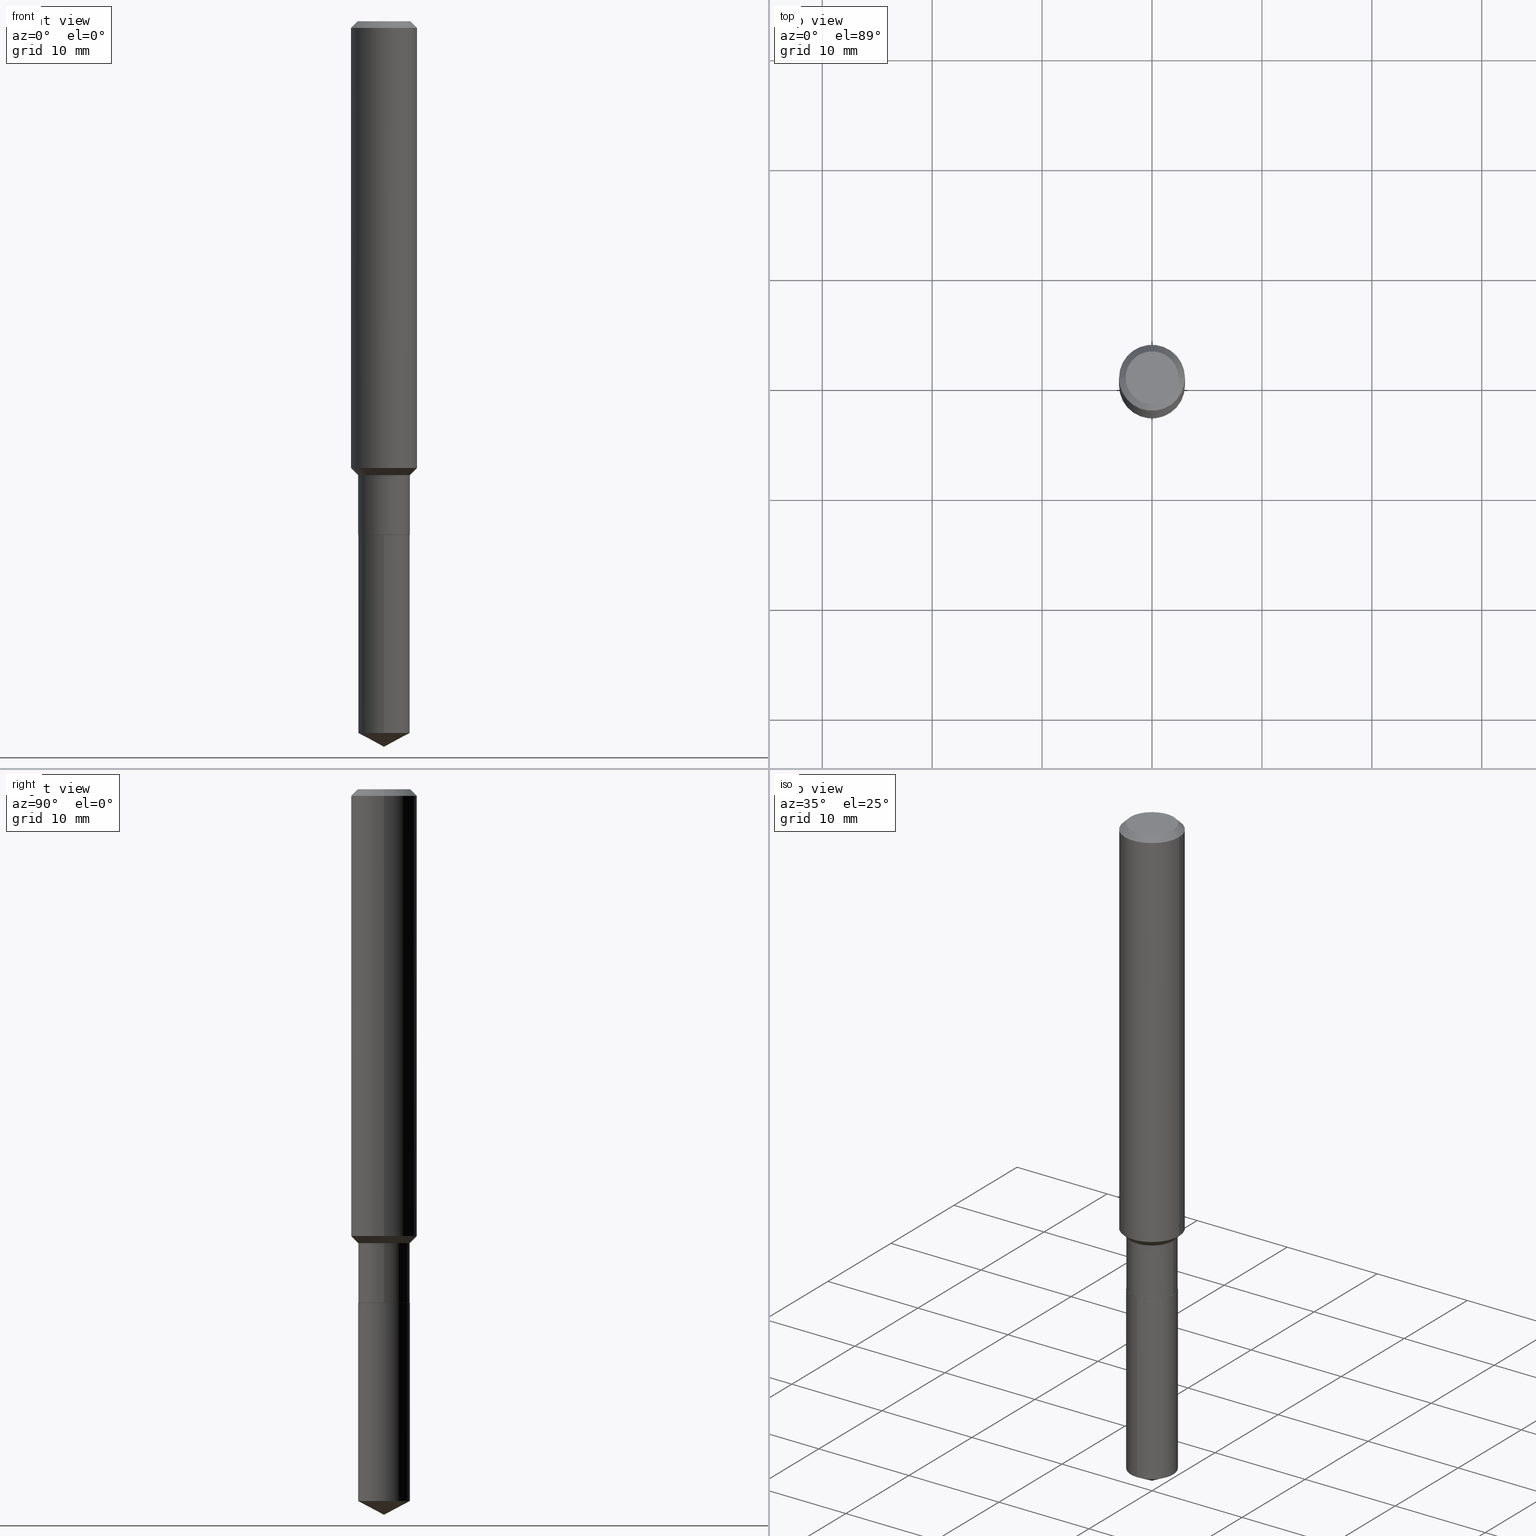
[diagram: canonical four-view strip — front | top / right | iso, engineering-drawing reading convention]
A machine part, canonical four-view strip (front | top / right | iso — engineering-drawing reading convention). The complete STEP part file that produces these views, byte-faithful:
ISO-10303-21;
HEADER;
FILE_DESCRIPTION (( 'STEP AP203' ),
    '1' );
FILE_NAME ('67617.STEP',
    '2024-04-25T07:22:10',
    ( '' ),
    ( '' ),
    'SwSTEP 2.0',
    'SolidWorks 2023',
    '' );
FILE_SCHEMA (( 'CONFIG_CONTROL_DESIGN' ));
ENDSEC;

DATA;
#1 = ORIENTED_EDGE ( 'NONE', *, *, #297, .F. ) ;
#2 = CARTESIAN_POINT ( 'NONE',  ( 5.776197320209326656E-31, -8.246878922347558061E-17, -0.02362000000000013741 ) ) ;
#3 = ORIENTED_EDGE ( 'NONE', *, *, #297, .T. ) ;
#4 = CARTESIAN_POINT ( 'NONE',  ( 6.234010844415033775E-29, -8.900571095971826926E-15, -2.549216877571312878 ) ) ;
#5 = EDGE_CURVE ( 'NONE', #46, #387, #107, .T. ) ;
#6 = ORIENTED_EDGE ( 'NONE', *, *, #30, .F. ) ;
#7 = DIRECTION ( 'NONE',  ( -1.000000000000000000, 6.982962677686265922E-15, -4.876176775795935793E-29 ) ) ;
#8 = VERTEX_POINT ( 'NONE', #451 ) ;
#9 = DIRECTION ( 'NONE',  ( 1.000000000000000000, -6.982962677686266711E-15, 0.000000000000000000 ) ) ;
#10 = VERTEX_POINT ( 'NONE', #199 ) ;
#11 = CIRCLE ( 'NONE', #37, 0.09249999999999998501 ) ;
#12 = DESIGN_CONTEXT ( 'detailed design', #197, 'design' ) ;
#13 = LINE ( 'NONE', #421, #258 ) ;
#14 = CARTESIAN_POINT ( 'NONE',  ( 3.975598638215176219E-29, -5.676101212557301529E-15, -1.625699999999999923 ) ) ;
#15 = ADVANCED_FACE ( 'NONE', ( #160 ), #364, .T. ) ;
#16 = LINE ( 'NONE', #397, #274 ) ;
#17 = DIRECTION ( 'NONE',  ( -1.000000000000000000, 6.982962677686266711E-15, 0.000000000000000000 ) ) ;
#18 = CARTESIAN_POINT ( 'NONE',  ( -0.09249999999999998501, -5.389469926097407680E-15, -1.837999999999999856 ) ) ;
#19 = DIRECTION ( 'NONE',  ( 1.000000000000000000, -6.982962677686266711E-15, 4.876176775795935793E-29 ) ) ;
#20 = CARTESIAN_POINT ( 'NONE',  ( 0.000000000000000000, 0.000000000000000000, 0.000000000000000000 ) ) ;
#21 = AXIS2_PLACEMENT_3D ( 'NONE', #245, #209, #17 ) ;
#22 = DIRECTION ( 'NONE',  ( -0.7071067811865484609, 7.493145998870357316E-15, 0.7071067811865465735 ) ) ;
#23 = VECTOR ( 'NONE', #191, 39.37007874015748143 ) ;
#24 = PRODUCT_DEFINITION_FORMATION_WITH_SPECIFIED_SOURCE ( 'ANY', '', #420, .NOT_KNOWN. ) ;
#25 = DIRECTION ( 'NONE',  ( -2.445468806185136597E-29, 3.491481338843145583E-15, 1.000000000000000000 ) ) ;
#26 = DIRECTION ( 'NONE',  ( -2.445441355188963032E-29, 3.491520650232079985E-15, 1.000000000000000000 ) ) ;
#27 = DIRECTION ( 'NONE',  ( -6.982962677686265922E-15, -1.000000000000000000, 2.953349182339743999E-15 ) ) ;
#28 = COORDINATED_UNIVERSAL_TIME_OFFSET ( 5, 0, .BEHIND. ) ;
#29 =( GEOMETRIC_REPRESENTATION_CONTEXT ( 3 ) GLOBAL_UNCERTAINTY_ASSIGNED_CONTEXT ( ( #389 ) ) GLOBAL_UNIT_ASSIGNED_CONTEXT ( ( #359, #424, #319 ) ) REPRESENTATION_CONTEXT ( 'NONE', 'WORKASPACE' ) );
#30 = EDGE_CURVE ( 'NONE', #484, #8, #344, .T. ) ;
#31 = EDGE_LOOP ( 'NONE', ( #352, #156, #158, #454 ) ) ;
#32 = CARTESIAN_POINT ( 'NONE',  ( 4.495994400171372866E-29, -6.419088441463122636E-15, -1.838499999999999801 ) ) ;
#33 = EDGE_CURVE ( 'NONE', #296, #34, #134, .T. ) ;
#34 = VERTEX_POINT ( 'NONE', #355 ) ;
#35 = AXIS2_PLACEMENT_3D ( 'NONE', #169, #360, #27 ) ;
#36 = EDGE_CURVE ( 'NONE', #462, #141, #485, .T. ) ;
#37 = AXIS2_PLACEMENT_3D ( 'NONE', #109, #340, #489 ) ;
#38 = EDGE_LOOP ( 'NONE', ( #223, #280, #184, #48 ) ) ;
#39 = FACE_OUTER_BOUND ( 'NONE', #192, .T. ) ;
#40 = ORIENTED_EDGE ( 'NONE', *, *, #452, .F. ) ;
#41 = CC_DESIGN_PERSON_AND_ORGANIZATION_ASSIGNMENT ( #438, #255, ( #24 ) ) ;
#42 = DIRECTION ( 'NONE',  ( 2.445441355188962752E-29, -3.491520650232079590E-15, -1.000000000000000000 ) ) ;
#43 = ORIENTED_EDGE ( 'NONE', *, *, #82, .F. ) ;
#44 = ORGANIZATION ( 'UNSPECIFIED', 'UNSPECIFIED', '' ) ;
#45 = CARTESIAN_POINT ( 'NONE',  ( 4.495994400171372866E-29, -6.419088441463122636E-15, -1.838499999999999801 ) ) ;
#46 = VERTEX_POINT ( 'NONE', #465 ) ;
#47 = DIRECTION ( 'NONE',  ( -6.982962677686265922E-15, -1.000000000000000000, 5.906698364679487997E-15 ) ) ;
#48 = ORIENTED_EDGE ( 'NONE', *, *, #464, .F. ) ;
#49 = DIRECTION ( 'NONE',  ( 2.438088387897960049E-29, -3.491481338843145188E-15, -1.000000000000000000 ) ) ;
#50 = ORIENTED_EDGE ( 'NONE', *, *, #481, .T. ) ;
#51 = ADVANCED_FACE ( 'NONE', ( #401 ), #112, .T. ) ;
#52 = DIRECTION ( 'NONE',  ( -2.445468806185136877E-29, 3.491481338843145188E-15, 1.000000000000000000 ) ) ;
#53 = APPROVAL_PERSON_ORGANIZATION ( #224, #321, #188 ) ;
#54 = CARTESIAN_POINT ( 'NONE',  ( 4.495994400171372866E-29, -6.419088441463122636E-15, -1.838499999999999801 ) ) ;
#55 = CARTESIAN_POINT ( 'NONE',  ( 0.09249999999999998501, -6.459240476859795918E-16, 4.510463517611239347E-30 ) ) ;
#56 = LINE ( 'NONE', #400, #305 ) ;
#57 = DIRECTION ( 'NONE',  ( 0.7071067811866078578, -2.468850131082888544E-15, 0.7071067811864871766 ) ) ;
#58 = VECTOR ( 'NONE', #307, 39.37007874015748143 ) ;
#59 = FACE_OUTER_BOUND ( 'NONE', #367, .T. ) ;
#60 = DIRECTION ( 'NONE',  ( -2.445468806185136597E-29, 3.491481338843145583E-15, 1.000000000000000000 ) ) ;
#61 = APPROVAL_DATE_TIME ( #143, #229 ) ;
#62 = DIRECTION ( 'NONE',  ( -2.445468806185136597E-29, 3.491481338843145583E-15, 1.000000000000000000 ) ) ;
#63 = COORDINATED_UNIVERSAL_TIME_OFFSET ( 5, 0, .BEHIND. ) ;
#64 = VECTOR ( 'NONE', #244, 39.37007874015748143 ) ;
#65 = ORIENTED_EDGE ( 'NONE', *, *, #363, .T. ) ;
#66 = COORDINATED_UNIVERSAL_TIME_OFFSET ( 5, 0, .BEHIND. ) ;
#67 = APPROVAL_DATE_TIME ( #440, #321 ) ;
#68 = ORIENTED_EDGE ( 'NONE', *, *, #432, .T. ) ;
#69 = AXIS2_PLACEMENT_3D ( 'NONE', #218, #26, #87 ) ;
#70 = DIRECTION ( 'NONE',  ( -2.445441355188963032E-29, 3.491520650232079985E-15, 1.000000000000000000 ) ) ;
#71 = ORIENTED_EDGE ( 'NONE', *, *, #283, .T. ) ;
#72 = EDGE_CURVE ( 'NONE', #10, #141, #254, .T. ) ;
#73 = DIRECTION ( 'NONE',  ( -2.445441355188963032E-29, 3.491520650232079985E-15, 1.000000000000000000 ) ) ;
#74 = ORIENTED_EDGE ( 'NONE', *, *, #72, .T. ) ;
#75 = PRODUCT_DEFINITION_SHAPE ( 'NONE', 'NONE',  #190 ) ;
#76 = CC_DESIGN_PERSON_AND_ORGANIZATION_ASSIGNMENT ( #407, #106, ( #383 ) ) ;
#77 = CYLINDRICAL_SURFACE ( 'NONE', #204, 0.09249999999999998501 ) ;
#78 = ORIENTED_EDGE ( 'NONE', *, *, #382, .T. ) ;
#79 = AXIS2_PLACEMENT_3D ( 'NONE', #54, #428, #177 ) ;
#80 = CIRCLE ( 'NONE', #108, 0.09447999999999998066 ) ;
#81 = DIRECTION ( 'NONE',  ( 0.7071067811865460184, -7.319954787623251312E-15, -0.7071067811865490160 ) ) ;
#82 = EDGE_CURVE ( 'NONE', #141, #462, #392, .T. ) ;
#83 = EDGE_LOOP ( 'NONE', ( #88, #231, #194, #302 ) ) ;
#84 = DIRECTION ( 'NONE',  ( -1.000000000000000000, 6.982962677686266711E-15, 0.000000000000000000 ) ) ;
#85 = ADVANCED_FACE ( 'NONE', ( #281 ), #380, .T. ) ;
#86 = ORIENTED_EDGE ( 'NONE', *, *, #470, .T. ) ;
#87 = DIRECTION ( 'NONE',  ( -6.982962677686266711E-15, -1.000000000000000000, 3.541896320645574279E-15 ) ) ;
#88 = ORIENTED_EDGE ( 'NONE', *, *, #448, .F. ) ;
#89 = AXIS2_PLACEMENT_3D ( 'NONE', #385, #114, #268 ) ;
#90 = DIRECTION ( 'NONE',  ( -0.7071067811865460184, 2.468850131082241283E-15, -0.7071067811865490160 ) ) ;
#91 = CARTESIAN_POINT ( 'NONE',  ( 4.494771665768280625E-29, -6.417342700793701132E-15, -1.837999999999999856 ) ) ;
#92 = APPROVAL ( #483, 'UNSPECIFIED' ) ;
#93 = DIRECTION ( 'NONE',  ( -2.445468806185136597E-29, 3.491481338843145583E-15, 1.000000000000000000 ) ) ;
#94 = LINE ( 'NONE', #326, #213 ) ;
#95 = DIRECTION ( 'NONE',  ( -2.445468806185136597E-29, 3.491481338843145583E-15, 1.000000000000000000 ) ) ;
#96 = AXIS2_PLACEMENT_3D ( 'NONE', #293, #25, #219 ) ;
#97 = DIRECTION ( 'NONE',  ( 1.000000000000000000, -6.982962677686269866E-15, 0.000000000000000000 ) ) ;
#98 = CARTESIAN_POINT ( 'NONE',  ( -0.09199999999999999845, -5.762739897389719472E-15, -1.838499999999999801 ) ) ;
#99 = AXIS2_PLACEMENT_3D ( 'NONE', #414, #73, #272 ) ;
#100 = CARTESIAN_POINT ( 'NONE',  ( 3.975598638215176219E-29, -5.676101212557301529E-15, -1.625699999999999923 ) ) ;
#101 = CC_DESIGN_PERSON_AND_ORGANIZATION_ASSIGNMENT ( #110, #372, ( #190 ) ) ;
#102 = CALENDAR_DATE ( 2024, 25, 4 ) ;
#103 = DIRECTION ( 'NONE',  ( 1.000000000000000000, -6.982962677686266711E-15, 4.876176775795935793E-29 ) ) ;
#104 = EDGE_LOOP ( 'NONE', ( #341, #78, #182, #201 ) ) ;
#105 = ADVANCED_FACE ( 'NONE', ( #132 ), #442, .T. ) ;
#106 = PERSON_AND_ORGANIZATION_ROLE ( 'classification_officer' ) ;
#107 = CIRCLE ( 'NONE', #226, 0.09249999999999998501 ) ;
#108 = AXIS2_PLACEMENT_3D ( 'NONE', #390, #234, #381 ) ;
#109 = CARTESIAN_POINT ( 'NONE',  ( 3.975598638215176219E-29, -5.676101212557301529E-15, -1.625699999999999923 ) ) ;
#110 = PERSON_AND_ORGANIZATION ( #289, #44 ) ;
#111 = EDGE_LOOP ( 'NONE', ( #417, #419 ) ) ;
#112 = CONICAL_SURFACE ( 'NONE', #96, 0.09199999999999999845, 0.7853981633975336552 ) ;
#113 = CONICAL_SURFACE ( 'NONE', #69, 74.04434902938325536, 1.082104136236484937 ) ;
#114 = DIRECTION ( 'NONE',  ( -2.438088387897960049E-29, 3.491481338843145188E-15, 1.000000000000000000 ) ) ;
#115 = DIRECTION ( 'NONE',  ( -2.445468806185136597E-29, 3.491481338843145583E-15, 1.000000000000000000 ) ) ;
#116 = FACE_OUTER_BOUND ( 'NONE', #111, .T. ) ;
#117 = VERTEX_POINT ( 'NONE', #396 ) ;
#118 = ADVANCED_FACE ( 'NONE', ( #395 ), #287, .T. ) ;
#119 = DIRECTION ( 'NONE',  ( 2.445468806185136597E-29, -3.491481338843145583E-15, -1.000000000000000000 ) ) ;
#120 = EDGE_LOOP ( 'NONE', ( #262, #148 ) ) ;
#121 = CC_DESIGN_APPROVAL ( #229, ( #190 ) ) ;
#122 = CARTESIAN_POINT ( 'NONE',  ( 6.354234817322999843E-29, -9.072367257563035943E-15, -2.598399999999999821 ) ) ;
#123 = EDGE_LOOP ( 'NONE', ( #71, #482, #446, #439 ) ) ;
#124 = CARTESIAN_POINT ( 'NONE',  ( 4.495994400171372866E-29, -6.419088441463122636E-15, -1.838499999999999801 ) ) ;
#125 = EDGE_LOOP ( 'NONE', ( #271, #422, #150, #240 ) ) ;
#126 = CARTESIAN_POINT ( 'NONE',  ( -0.09199999999999999845, -5.765389124563829884E-15, -1.838499999999999801 ) ) ;
#127 = DIRECTION ( 'NONE',  ( 1.000000000000000000, -6.982962677686265922E-15, 0.000000000000000000 ) ) ;
#128 = EDGE_CURVE ( 'NONE', #347, #349, #170, .T. ) ;
#129 = AXIS2_PLACEMENT_3D ( 'NONE', #318, #247, #211 ) ;
#130 = CARTESIAN_POINT ( 'NONE',  ( 5.776197320209326656E-31, -8.246878922347558061E-17, -0.02362000000000013741 ) ) ;
#131 = DIRECTION ( 'NONE',  ( 1.000000000000000000, 0.000000000000000000, 0.000000000000000000 ) ) ;
#132 = FACE_OUTER_BOUND ( 'NONE', #273, .T. ) ;
#133 = LINE ( 'NONE', #431, #443 ) ;
#134 = CIRCLE ( 'NONE', #35, 0.09249999999999999889 ) ;
#135 = APPROVAL_STATUS ( 'not_yet_approved' ) ;
#136 = CC_DESIGN_DATE_AND_TIME_ASSIGNMENT ( #179, #436, ( #190 ) ) ;
#137 = LOCAL_TIME ( 3, 22, 10.00000000000000000, #28 ) ;
#138 = DIRECTION ( 'NONE',  ( -2.445468806185136597E-29, 3.491481338843145583E-15, 1.000000000000000000 ) ) ;
#139 = CC_DESIGN_APPROVAL ( #92, ( #383 ) ) ;
#140 = APPROVAL_STATUS ( 'not_yet_approved' ) ;
#141 = VERTEX_POINT ( 'NONE', #175 ) ;
#142 = EDGE_CURVE ( 'NONE', #34, #296, #338, .T. ) ;
#143 = DATE_AND_TIME ( #336, #137 ) ;
#144 = AXIS2_PLACEMENT_3D ( 'NONE', #433, #207, #166 ) ;
#145 = CIRCLE ( 'NONE', #399, 0.1180999999999999966 ) ;
#146 = EDGE_LOOP ( 'NONE', ( #337, #303, #74, #308 ) ) ;
#147 = MANIFOLD_SOLID_BREP ( 'Body-Move/Copy2[2]', #242 ) ;
#148 = ORIENTED_EDGE ( 'NONE', *, *, #487, .F. ) ;
#149 = EDGE_CURVE ( 'NONE', #117, #300, #434, .T. ) ;
#150 = ORIENTED_EDGE ( 'NONE', *, *, #429, .T. ) ;
#151 = CYLINDRICAL_SURFACE ( 'NONE', #99, 0.09249999999999999889 ) ;
#152 = ORIENTED_EDGE ( 'NONE', *, *, #350, .T. ) ;
#153 = VECTOR ( 'NONE', #57, 39.37007874015748143 ) ;
#154 = CIRCLE ( 'NONE', #267, 0.09199999999999999845 ) ;
#155 = CARTESIAN_POINT ( 'NONE',  ( 0.09249999999999998501, -6.322025260243280726E-15, -1.625699999999999923 ) ) ;
#156 = ORIENTED_EDGE ( 'NONE', *, *, #173, .T. ) ;
#157 = FACE_OUTER_BOUND ( 'NONE', #120, .T. ) ;
#158 = ORIENTED_EDGE ( 'NONE', *, *, #149, .F. ) ;
#159 = DIRECTION ( 'NONE',  ( 6.982962677686265922E-15, 1.000000000000000000, -3.491520650232079590E-15 ) ) ;
#160 = FACE_OUTER_BOUND ( 'NONE', #31, .T. ) ;
#161 = AXIS2_PLACEMENT_3D ( 'NONE', #253, #60, #19 ) ;
#162 = CIRCLE ( 'NONE', #467, 0.09249999999999999889 ) ;
#163 = CARTESIAN_POINT ( 'NONE',  ( -8.992293342224742684E-28, 1.283891479389483487E-13, 36.77167874015748339 ) ) ;
#164 = CARTESIAN_POINT ( 'NONE',  ( 3.975598638215176219E-29, -5.676101212557301529E-15, -1.625699999999999923 ) ) ;
#165 = DIRECTION ( 'NONE',  ( -2.445441355188963032E-29, 3.491520650232079590E-15, 1.000000000000000000 ) ) ;
#166 = DIRECTION ( 'NONE',  ( 1.000000000000000000, -6.982962677686269077E-15, 0.000000000000000000 ) ) ;
#167 = CARTESIAN_POINT ( 'NONE',  ( 4.495994400171372866E-29, -6.419088441463122636E-15, -1.838499999999999801 ) ) ;
#168 = CC_DESIGN_PERSON_AND_ORGANIZATION_ASSIGNMENT ( #409, #368, ( #24 ) ) ;
#169 = CARTESIAN_POINT ( 'NONE',  ( 4.495994400171372866E-29, -6.419088441463122636E-15, -1.838499999999999801 ) ) ;
#170 = CIRCLE ( 'NONE', #195, 0.1180999999999999966 ) ;
#171 = DIRECTION ( 'NONE',  ( -2.445468806185136877E-29, 3.491481338843145188E-15, 1.000000000000000000 ) ) ;
#172 = DIRECTION ( 'NONE',  ( 6.273719981627760554E-15, 0.8829475928589289868, 0.4694715627858871976 ) ) ;
#173 = EDGE_CURVE ( 'NONE', #387, #300, #94, .T. ) ;
#174 = PERSON_AND_ORGANIZATION ( #289, #44 ) ;
#175 = CARTESIAN_POINT ( 'NONE',  ( 0.09249999999999998501, -7.063266748479680329E-15, -1.837999999999999856 ) ) ;
#176 = DIRECTION ( 'NONE',  ( -6.165590087286828929E-15, -0.8829475928589255451, 0.4694715627858933038 ) ) ;
#177 = DIRECTION ( 'NONE',  ( -6.982962677686265922E-15, -1.000000000000000000, 2.953349182339743999E-15 ) ) ;
#178 = AXIS2_PLACEMENT_3D ( 'NONE', #466, #437, #127 ) ;
#179 = DATE_AND_TIME ( #294, #410 ) ;
#180 = AXIS2_PLACEMENT_3D ( 'NONE', #311, #49, #7 ) ;
#181 = CARTESIAN_POINT ( 'NONE',  ( 0.000000000000000000, 0.000000000000000000, 0.000000000000000000 ) ) ;
#182 = ORIENTED_EDGE ( 'NONE', *, *, #5, .F. ) ;
#183 = DIRECTION ( 'NONE',  ( -2.445441355188963032E-29, 3.491520650232079985E-15, 1.000000000000000000 ) ) ;
#184 = ORIENTED_EDGE ( 'NONE', *, *, #128, .F. ) ;
#185 = CARTESIAN_POINT ( 'NONE',  ( 6.572520305781548854E-16, 0.09249999999999110323, -2.549216877571313766 ) ) ;
#186 = CONICAL_SURFACE ( 'NONE', #129, 0.09199999999999999845, 0.7853981633975336552 ) ;
#187 = VERTEX_POINT ( 'NONE', #98 ) ;
#188 = APPROVAL_ROLE ( '' ) ;
#189 = ORIENTED_EDGE ( 'NONE', *, *, #72, .F. ) ;
#190 = PRODUCT_DEFINITION ( 'UNKNOWN', '', #24, #12 ) ;
#191 = DIRECTION ( 'NONE',  ( -2.445468806185136877E-29, 3.491481338843145188E-15, 1.000000000000000000 ) ) ;
#192 = EDGE_LOOP ( 'NONE', ( #40, #3, #152, #393 ) ) ;
#193 = DIRECTION ( 'NONE',  ( -2.445441355188963032E-29, 3.491520650232079590E-15, 1.000000000000000000 ) ) ;
#194 = ORIENTED_EDGE ( 'NONE', *, *, #464, .T. ) ;
#195 = AXIS2_PLACEMENT_3D ( 'NONE', #130, #398, #284 ) ;
#196 = VECTOR ( 'NONE', #193, 39.37007874015748143 ) ;
#197 = APPLICATION_CONTEXT ( 'configuration controlled 3d designs of mechanical parts and assemblies' ) ;
#198 = DIRECTION ( 'NONE',  ( -2.445441355188963032E-29, 3.491520650232079985E-15, 1.000000000000000000 ) ) ;
#199 = CARTESIAN_POINT ( 'NONE',  ( 0.09199999999999999845, -7.061521007810258826E-15, -1.838499999999999801 ) ) ;
#200 = DIRECTION ( 'NONE',  ( -2.445468806185136597E-29, 3.491481338843145583E-15, 1.000000000000000000 ) ) ;
#201 = ORIENTED_EDGE ( 'NONE', *, *, #429, .F. ) ;
#202 = FACE_OUTER_BOUND ( 'NONE', #479, .T. ) ;
#203 = ORIENTED_EDGE ( 'NONE', *, *, #217, .T. ) ;
#204 = AXIS2_PLACEMENT_3D ( 'NONE', #237, #200, #351 ) ;
#205 = LOCAL_TIME ( 3, 22, 10.00000000000000000, #63 ) ;
#206 = CARTESIAN_POINT ( 'NONE',  ( 6.572520305781376291E-16, 0.09249999999999358735, -1.838500000000000023 ) ) ;
#207 = DIRECTION ( 'NONE',  ( -2.445468806185136597E-29, 3.491481338843145583E-15, 1.000000000000000000 ) ) ;
#208 = DIRECTION ( 'NONE',  ( 1.000000000000000000, -6.982962677686269866E-15, 0.000000000000000000 ) ) ;
#209 = DIRECTION ( 'NONE',  ( 2.445468806185136597E-29, -3.491481338843145583E-15, -1.000000000000000000 ) ) ;
#210 = LINE ( 'NONE', #361, #227 ) ;
#211 = DIRECTION ( 'NONE',  ( 1.000000000000000000, -6.982962677686269866E-15, 0.000000000000000000 ) ) ;
#212 = ADVANCED_FACE ( 'NONE', ( #328 ), #186, .T. ) ;
#213 = VECTOR ( 'NONE', #22, 39.37007874015748143 ) ;
#214 = AXIS2_PLACEMENT_3D ( 'NONE', #163, #70, #377 ) ;
#215 = DIRECTION ( 'NONE',  ( -0.7071067811866078578, 7.493145998870571886E-15, 0.7071067811864871766 ) ) ;
#216 = DIRECTION ( 'NONE',  ( 1.000000000000000000, -6.982962677686265922E-15, 0.000000000000000000 ) ) ;
#217 = EDGE_CURVE ( 'NONE', #343, #264, #473, .T. ) ;
#218 = CARTESIAN_POINT ( 'NONE',  ( -8.992293342224742684E-28, 1.283891479389483487E-13, 36.77167874015748339 ) ) ;
#219 = DIRECTION ( 'NONE',  ( 1.000000000000000000, -6.982962677686269866E-15, 0.000000000000000000 ) ) ;
#220 = DATE_TIME_ROLE ( 'classification_date' ) ;
#221 = APPROVAL_ROLE ( '' ) ;
#222 = DIRECTION ( 'NONE',  ( -2.445468806185136597E-29, 3.491481338843145583E-15, 1.000000000000000000 ) ) ;
#223 = ORIENTED_EDGE ( 'NONE', *, *, #149, .T. ) ;
#224 = PERSON_AND_ORGANIZATION ( #289, #44 ) ;
#225 = CALENDAR_DATE ( 2024, 25, 4 ) ;
#226 = AXIS2_PLACEMENT_3D ( 'NONE', #14, #235, #241 ) ;
#227 = VECTOR ( 'NONE', #171, 39.37007874015748143 ) ;
#228 = LOCAL_TIME ( 3, 22, 10.00000000000000000, #445 ) ;
#229 = APPROVAL ( #140, 'UNSPECIFIED' ) ;
#230 = CARTESIAN_POINT ( 'NONE',  ( -6.459240476859346268E-16, -0.09250000000000642431, -1.838499999999999579 ) ) ;
#231 = ORIENTED_EDGE ( 'NONE', *, *, #490, .T. ) ;
#232 = LINE ( 'NONE', #378, #23 ) ;
#233 = ORIENTED_EDGE ( 'NONE', *, *, #490, .F. ) ;
#234 = DIRECTION ( 'NONE',  ( -2.445468806185136597E-29, 3.491481338843145583E-15, 1.000000000000000000 ) ) ;
#235 = DIRECTION ( 'NONE',  ( -2.445468806185136597E-29, 3.491481338843145583E-15, 1.000000000000000000 ) ) ;
#236 = CC_DESIGN_APPROVAL ( #321, ( #24 ) ) ;
#237 = CARTESIAN_POINT ( 'NONE',  ( 0.000000000000000000, 0.000000000000000000, 0.000000000000000000 ) ) ;
#238 = ORIENTED_EDGE ( 'NONE', *, *, #142, .T. ) ;
#239 = CARTESIAN_POINT ( 'NONE',  ( 0.1180999999999999966, -9.071566814582237199E-16, -0.02362000000000013741 ) ) ;
#240 = ORIENTED_EDGE ( 'NONE', *, *, #279, .F. ) ;
#241 = DIRECTION ( 'NONE',  ( 1.000000000000000000, -6.982962677686265922E-15, 0.000000000000000000 ) ) ;
#242 = CLOSED_SHELL ( 'NONE', ( #51, #105, #246, #15, #256, #394, #85, #118, #366, #335, #346, #212 ) ) ;
#243 = AXIS2_PLACEMENT_3D ( 'NONE', #124, #468, #97 ) ;
#244 = DIRECTION ( 'NONE',  ( -2.445468806185136877E-29, 3.491481338843145188E-15, 1.000000000000000000 ) ) ;
#245 = CARTESIAN_POINT ( 'NONE',  ( 5.776197320209326656E-31, -8.246878922347558061E-17, -0.02362000000000013741 ) ) ;
#246 = ADVANCED_FACE ( 'NONE', ( #324 ), #469, .T. ) ;
#247 = DIRECTION ( 'NONE',  ( -2.445468806185136597E-29, 3.491481338843145583E-15, 1.000000000000000000 ) ) ;
#248 = LINE ( 'NONE', #55, #64 ) ;
#249 = CC_DESIGN_DATE_AND_TIME_ASSIGNMENT ( #292, #220, ( #383 ) ) ;
#250 = DIRECTION ( 'NONE',  ( -2.445468806185136597E-29, 3.491481338843145583E-15, 1.000000000000000000 ) ) ;
#251 = CIRCLE ( 'NONE', #339, 0.1181000000000001909 ) ;
#252 = CARTESIAN_POINT ( 'NONE',  ( 3.912994636776836330E-29, -5.586719290282915813E-15, -1.600099999999999634 ) ) ;
#253 = CARTESIAN_POINT ( 'NONE',  ( 0.000000000000000000, 0.000000000000000000, 0.000000000000000000 ) ) ;
#254 = LINE ( 'NONE', #290, #153 ) ;
#255 = PERSON_AND_ORGANIZATION_ROLE ( 'creator' ) ;
#256 = ADVANCED_FACE ( 'NONE', ( #405 ), #259, .T. ) ;
#257 = DATE_AND_TIME ( #403, #228 ) ;
#258 = VECTOR ( 'NONE', #81, 39.37007874015748143 ) ;
#259 = CYLINDRICAL_SURFACE ( 'NONE', #475, 0.09249999999999998501 ) ;
#260 = APPROVAL_ROLE ( '' ) ;
#261 = ADVANCED_FACE ( 'NONE', ( #480 ), #369, .T. ) ;
#262 = ORIENTED_EDGE ( 'NONE', *, *, #470, .F. ) ;
#263 = SHAPE_DEFINITION_REPRESENTATION ( #75, #388 ) ;
#264 = VERTEX_POINT ( 'NONE', #185 ) ;
#265 = AXIS2_PLACEMENT_3D ( 'NONE', #164, #115, #216 ) ;
#266 = CARTESIAN_POINT ( 'NONE',  ( -6.459240476859346268E-16, -0.09250000000000642431, -1.838499999999999579 ) ) ;
#267 = AXIS2_PLACEMENT_3D ( 'NONE', #167, #288, #208 ) ;
#268 = DIRECTION ( 'NONE',  ( 1.000000000000000000, -6.982962677686265922E-15, 4.876176775795935793E-29 ) ) ;
#269 = ORIENTED_EDGE ( 'NONE', *, *, #33, .T. ) ;
#270 = CARTESIAN_POINT ( 'NONE',  ( 5.776197320209326656E-31, -8.246878922347558061E-17, -0.02362000000000013741 ) ) ;
#271 = ORIENTED_EDGE ( 'NONE', *, *, #382, .F. ) ;
#272 = DIRECTION ( 'NONE',  ( -6.982962677686265922E-15, -1.000000000000000000, 2.953349182339743999E-15 ) ) ;
#273 = EDGE_LOOP ( 'NONE', ( #295, #65, #379, #456 ) ) ;
#274 = VECTOR ( 'NONE', #90, 39.37007874015748143 ) ;
#275 = CC_DESIGN_SECURITY_CLASSIFICATION ( #383, ( #24 ) ) ;
#276 = FACE_OUTER_BOUND ( 'NONE', #310, .T. ) ;
#277 = ORIENTED_EDGE ( 'NONE', *, *, #173, .F. ) ;
#278 = DIRECTION ( 'NONE',  ( 1.000000000000000000, -6.982962677686269077E-15, 0.000000000000000000 ) ) ;
#279 = EDGE_CURVE ( 'NONE', #387, #46, #11, .T. ) ;
#280 = ORIENTED_EDGE ( 'NONE', *, *, #448, .T. ) ;
#281 = FACE_OUTER_BOUND ( 'NONE', #312, .T. ) ;
#282 = CONICAL_SURFACE ( 'NONE', #365, 0.1180999999999999966, 0.7853981633974461696 ) ;
#283 = EDGE_CURVE ( 'NONE', #306, #264, #162, .T. ) ;
#284 = DIRECTION ( 'NONE',  ( 1.000000000000000000, -6.982962677686266711E-15, 0.000000000000000000 ) ) ;
#285 = EDGE_CURVE ( 'NONE', #8, #484, #80, .T. ) ;
#286 = APPLICATION_PROTOCOL_DEFINITION ( 'international standard', 'config_control_design', 1994, #373 ) ;
#287 = CYLINDRICAL_SURFACE ( 'NONE', #161, 0.1181000000000001077 ) ;
#288 = DIRECTION ( 'NONE',  ( -2.445468806185136597E-29, 3.491481338843145583E-15, 1.000000000000000000 ) ) ;
#289 = PERSON ( 'UNSPECIFIED', 'UNSPECIFIED', 'UNSPECIFIED', ('UNSPECIFIED'), ('UNSPECIFIED'), ('UNSPECIFIED') ) ;
#290 = CARTESIAN_POINT ( 'NONE',  ( 0.09199999999999999845, -7.061521007810258826E-15, -1.838499999999999801 ) ) ;
#291 = AXIS2_PLACEMENT_3D ( 'NONE', #4, #455, #47 ) ;
#292 = DATE_AND_TIME ( #225, #205 ) ;
#293 = CARTESIAN_POINT ( 'NONE',  ( 4.495994400171372866E-29, -6.419088441463122636E-15, -1.838499999999999801 ) ) ;
#294 = CALENDAR_DATE ( 2024, 25, 4 ) ;
#295 = ORIENTED_EDGE ( 'NONE', *, *, #285, .F. ) ;
#296 = VERTEX_POINT ( 'NONE', #266 ) ;
#297 = EDGE_CURVE ( 'NONE', #264, #306, #375, .T. ) ;
#298 = CLOSED_SHELL ( 'NONE', ( #261, #370, #478, #376, #332 ) ) ;
#299 = DIRECTION ( 'NONE',  ( -6.982962677686265922E-15, -1.000000000000000000, 2.953349182339743999E-15 ) ) ;
#300 = VERTEX_POINT ( 'NONE', #353 ) ;
#301 = EDGE_CURVE ( 'NONE', #349, #347, #145, .T. ) ;
#302 = ORIENTED_EDGE ( 'NONE', *, *, #301, .F. ) ;
#303 = ORIENTED_EDGE ( 'NONE', *, *, #487, .T. ) ;
#304 = LINE ( 'NONE', #230, #196 ) ;
#305 = VECTOR ( 'NONE', #52, 39.37007874015748143 ) ;
#306 = VERTEX_POINT ( 'NONE', #450 ) ;
#307 = DIRECTION ( 'NONE',  ( 0.7071067811865484609, -2.468850131082266921E-15, 0.7071067811865465735 ) ) ;
#308 = ORIENTED_EDGE ( 'NONE', *, *, #36, .F. ) ;
#309 = CARTESIAN_POINT ( 'NONE',  ( -0.1180999999999999966, -1.995443068820515466E-15, -0.02362000000000013741 ) ) ;
#310 = EDGE_LOOP ( 'NONE', ( #384, #6, #423, #415 ) ) ;
#311 = CARTESIAN_POINT ( 'NONE',  ( 2.358133508849003952E-46, -3.366789680499277518E-32, -9.642868896486260050E-18 ) ) ;
#312 = EDGE_LOOP ( 'NONE', ( #277, #371, #460, #233 ) ) ;
#313 = VECTOR ( 'NONE', #172, 39.37007874015747433 ) ;
#314 = AXIS2_PLACEMENT_3D ( 'NONE', #45, #42, #159 ) ;
#315 = DIRECTION ( 'NONE',  ( -6.982962677686265922E-15, -1.000000000000000000, 5.906698364679487997E-15 ) ) ;
#316 = EDGE_LOOP ( 'NONE', ( #269, #238 ) ) ;
#317 =( LENGTH_UNIT ( ) NAMED_UNIT ( * ) SI_UNIT ( $, .METRE. ) );
#318 = CARTESIAN_POINT ( 'NONE',  ( 4.495994400171372866E-29, -6.419088441463122636E-15, -1.838499999999999801 ) ) ;
#319 =( NAMED_UNIT ( * ) SI_UNIT ( $, .STERADIAN. ) SOLID_ANGLE_UNIT ( ) );
#320 = DIRECTION ( 'NONE',  ( 1.000000000000000000, -6.982962677686265922E-15, 0.000000000000000000 ) ) ;
#321 = APPROVAL ( #135, 'UNSPECIFIED' ) ;
#322 = MANIFOLD_SOLID_BREP ( 'Body-Move/Copy2[1]', #298 ) ;
#323 = DIRECTION ( 'NONE',  ( 0.000000000000000000, 0.000000000000000000, 1.000000000000000000 ) ) ;
#324 = FACE_OUTER_BOUND ( 'NONE', #38, .T. ) ;
#325 = LINE ( 'NONE', #126, #329 ) ;
#326 = CARTESIAN_POINT ( 'NONE',  ( -0.09249999999999998501, -5.018849181979208668E-15, -1.625699999999999923 ) ) ;
#327 = CARTESIAN_POINT ( 'NONE',  ( -0.09447999999999998066, 7.009847083995354710E-16, -1.928573779297727792E-17 ) ) ;
#328 = FACE_OUTER_BOUND ( 'NONE', #146, .T. ) ;
#329 = VECTOR ( 'NONE', #215, 39.37007874015748143 ) ;
#330 = APPROVAL_PERSON_ORGANIZATION ( #408, #92, #221 ) ;
#331 = PERSON_AND_ORGANIZATION_ROLE ( 'design_owner' ) ;
#332 = ADVANCED_FACE ( 'NONE', ( #458 ), #411, .F. ) ;
#333 = APPROVAL_DATE_TIME ( #257, #92 ) ;
#334 = DIRECTION ( 'NONE',  ( 1.000000000000000000, -6.982962677686266711E-15, 4.876176775795935232E-29 ) ) ;
#335 = ADVANCED_FACE ( 'NONE', ( #116 ), #345, .F. ) ;
#336 = CALENDAR_DATE ( 2024, 25, 4 ) ;
#337 = ORIENTED_EDGE ( 'NONE', *, *, #432, .F. ) ;
#338 = CIRCLE ( 'NONE', #79, 0.09249999999999999889 ) ;
#339 = AXIS2_PLACEMENT_3D ( 'NONE', #252, #93, #278 ) ;
#340 = DIRECTION ( 'NONE',  ( -2.445468806185136597E-29, 3.491481338843145583E-15, 1.000000000000000000 ) ) ;
#341 = ORIENTED_EDGE ( 'NONE', *, *, #82, .T. ) ;
#342 = LINE ( 'NONE', #155, #58 ) ;
#343 = VERTEX_POINT ( 'NONE', #122 ) ;
#344 = CIRCLE ( 'NONE', #457, 0.09447999999999998066 ) ;
#345 = PLANE ( 'NONE',  #180 ) ;
#346 = ADVANCED_FACE ( 'NONE', ( #157 ), #453, .F. ) ;
#347 = VERTEX_POINT ( 'NONE', #239 ) ;
#348 = DIRECTION ( 'NONE',  ( -2.445468806185136597E-29, 3.491481338843145583E-15, 1.000000000000000000 ) ) ;
#349 = VERTEX_POINT ( 'NONE', #309 ) ;
#350 = EDGE_CURVE ( 'NONE', #306, #296, #304, .T. ) ;
#351 = DIRECTION ( 'NONE',  ( 1.000000000000000000, -6.982962677686266711E-15, 4.876176775795935232E-29 ) ) ;
#352 = ORIENTED_EDGE ( 'NONE', *, *, #5, .T. ) ;
#353 = CARTESIAN_POINT ( 'NONE',  ( -0.1181000000000001909, -4.747568319350236827E-15, -1.600099999999999634 ) ) ;
#354 = ORIENTED_EDGE ( 'NONE', *, *, #217, .F. ) ;
#355 = CARTESIAN_POINT ( 'NONE',  ( 6.572520305781550827E-16, 0.09249999999999358735, -1.838500000000000023 ) ) ;
#356 = DIRECTION ( 'NONE',  ( 1.000000000000000000, -6.982962677686265922E-15, 0.000000000000000000 ) ) ;
#357 = CARTESIAN_POINT ( 'NONE',  ( 6.354336639737017183E-29, -9.072222709585925365E-15, -2.598399999999999821 ) ) ;
#358 = APPROVAL_PERSON_ORGANIZATION ( #477, #229, #260 ) ;
#359 =( CONVERSION_BASED_UNIT ( 'INCH', #463 ) LENGTH_UNIT ( ) NAMED_UNIT ( #447 ) );
#360 = DIRECTION ( 'NONE',  ( -2.445441355188963032E-29, 3.491520650232079985E-15, 1.000000000000000000 ) ) ;
#361 = CARTESIAN_POINT ( 'NONE',  ( 0.1181000000000001077, -8.246878922347488542E-16, 5.758764772215005345E-30 ) ) ;
#362 = CARTESIAN_POINT ( 'NONE',  ( 4.716267017698007905E-46, -6.733579360998555036E-32, -1.928573779297252010E-17 ) ) ;
#363 = EDGE_CURVE ( 'NONE', #8, #347, #13, .T. ) ;
#364 = CONICAL_SURFACE ( 'NONE', #265, 0.09249999999999998501, 0.7853981633974496113 ) ;
#365 = AXIS2_PLACEMENT_3D ( 'NONE', #2, #119, #84 ) ;
#366 = ADVANCED_FACE ( 'NONE', ( #276 ), #282, .T. ) ;
#367 = EDGE_LOOP ( 'NONE', ( #354, #50, #1 ) ) ;
#368 = PERSON_AND_ORGANIZATION_ROLE ( 'design_supplier' ) ;
#369 = CYLINDRICAL_SURFACE ( 'NONE', #426, 0.09249999999999999889 ) ;
#370 = ADVANCED_FACE ( 'NONE', ( #202 ), #435, .T. ) ;
#371 = ORIENTED_EDGE ( 'NONE', *, *, #279, .T. ) ;
#372 = PERSON_AND_ORGANIZATION_ROLE ( 'creator' ) ;
#373 = APPLICATION_CONTEXT ( 'configuration controlled 3d designs of mechanical parts and assemblies' ) ;
#374 = AXIS2_PLACEMENT_3D ( 'NONE', #100, #250, #356 ) ;
#375 = CIRCLE ( 'NONE', #291, 0.09249999999999999889 ) ;
#376 = ADVANCED_FACE ( 'NONE', ( #39 ), #151, .T. ) ;
#377 = DIRECTION ( 'NONE',  ( -6.982962677686266711E-15, -1.000000000000000000, 3.541896320645574279E-15 ) ) ;
#378 = CARTESIAN_POINT ( 'NONE',  ( -0.09249999999999998501, 6.572520305780925654E-16, -4.550014958485786769E-30 ) ) ;
#379 = ORIENTED_EDGE ( 'NONE', *, *, #128, .T. ) ;
#380 = CONICAL_SURFACE ( 'NONE', #374, 0.09249999999999998501, 0.7853981633974496113 ) ;
#381 = DIRECTION ( 'NONE',  ( 1.000000000000000000, -6.982962677686267499E-15, 4.875432709231658792E-29 ) ) ;
#382 = EDGE_CURVE ( 'NONE', #462, #387, #232, .T. ) ;
#383 = SECURITY_CLASSIFICATION ( '', '', #472 ) ;
#384 = ORIENTED_EDGE ( 'NONE', *, *, #363, .F. ) ;
#385 = CARTESIAN_POINT ( 'NONE',  ( 4.495994400171372866E-29, -6.419088441463122636E-15, -1.838499999999999801 ) ) ;
#386 = EDGE_CURVE ( 'NONE', #46, #117, #342, .T. ) ;
#387 = VERTEX_POINT ( 'NONE', #418 ) ;
#388 = ADVANCED_BREP_SHAPE_REPRESENTATION ( '67617', ( #322, #147, #406 ), #29 ) ;
#389 = UNCERTAINTY_MEASURE_WITH_UNIT (LENGTH_MEASURE( 1.000000000000000082E-05 ), #359, 'distance_accuracy_value', 'NONE');
#390 = CARTESIAN_POINT ( 'NONE',  ( 4.716267017698007905E-46, -6.733579360998555036E-32, -1.928573779297252010E-17 ) ) ;
#391 = ORIENTED_EDGE ( 'NONE', *, *, #481, .F. ) ;
#392 = CIRCLE ( 'NONE', #178, 0.09249999999999998501 ) ;
#393 = ORIENTED_EDGE ( 'NONE', *, *, #142, .F. ) ;
#394 = ADVANCED_FACE ( 'NONE', ( #416 ), #77, .T. ) ;
#395 = FACE_OUTER_BOUND ( 'NONE', #83, .T. ) ;
#396 = CARTESIAN_POINT ( 'NONE',  ( 0.1181000000000001909, -6.411407182517665653E-15, -1.600099999999999634 ) ) ;
#397 = CARTESIAN_POINT ( 'NONE',  ( -0.1180999999999999966, 7.422191030112725094E-16, -0.02362000000000013741 ) ) ;
#398 = DIRECTION ( 'NONE',  ( -2.445468806185136597E-29, 3.491481338843145583E-15, 1.000000000000000000 ) ) ;
#399 = AXIS2_PLACEMENT_3D ( 'NONE', #270, #348, #9 ) ;
#400 = CARTESIAN_POINT ( 'NONE',  ( -0.1181000000000001077, 8.391509709326790846E-16, -5.809262341591049389E-30 ) ) ;
#401 = FACE_OUTER_BOUND ( 'NONE', #444, .T. ) ;
#402 = CC_DESIGN_PERSON_AND_ORGANIZATION_ASSIGNMENT ( #174, #331, ( #420 ) ) ;
#403 = CALENDAR_DATE ( 2024, 25, 4 ) ;
#404 = COORDINATED_UNIVERSAL_TIME_OFFSET ( 5, 0, .BEHIND. ) ;
#405 = FACE_OUTER_BOUND ( 'NONE', #104, .T. ) ;
#406 = AXIS2_PLACEMENT_3D ( 'NONE', #20, #323, #131 ) ;
#407 = PERSON_AND_ORGANIZATION ( #289, #44 ) ;
#408 = PERSON_AND_ORGANIZATION ( #289, #44 ) ;
#409 = PERSON_AND_ORGANIZATION ( #289, #44 ) ;
#410 = LOCAL_TIME ( 3, 22, 10.00000000000000000, #66 ) ;
#411 = PLANE ( 'NONE',  #314 ) ;
#412 = ORIENTED_EDGE ( 'NONE', *, *, #283, .F. ) ;
#413 = PRODUCT_RELATED_PRODUCT_CATEGORY ( 'detail', '', ( #420 ) ) ;
#414 = CARTESIAN_POINT ( 'NONE',  ( 4.495994400171372866E-29, -6.419088441463122636E-15, -1.838499999999999801 ) ) ;
#415 = ORIENTED_EDGE ( 'NONE', *, *, #301, .T. ) ;
#416 = FACE_OUTER_BOUND ( 'NONE', #125, .T. ) ;
#417 = ORIENTED_EDGE ( 'NONE', *, *, #30, .T. ) ;
#418 = CARTESIAN_POINT ( 'NONE',  ( -0.09249999999999998501, -5.389469926097407680E-15, -1.625699999999999923 ) ) ;
#419 = ORIENTED_EDGE ( 'NONE', *, *, #285, .T. ) ;
#420 = PRODUCT ( '67617', '67617', '', ( #430 ) ) ;
#421 = CARTESIAN_POINT ( 'NONE',  ( 0.1180999999999999966, -8.926936027602933910E-16, -0.02362000000000013741 ) ) ;
#422 = ORIENTED_EDGE ( 'NONE', *, *, #36, .T. ) ;
#423 = ORIENTED_EDGE ( 'NONE', *, *, #427, .T. ) ;
#424 =( NAMED_UNIT ( * ) PLANE_ANGLE_UNIT ( ) SI_UNIT ( $, .RADIAN. ) );
#425 = DIRECTION ( 'NONE',  ( 1.000000000000000000, -6.982962677686267499E-15, 4.875432709231658792E-29 ) ) ;
#426 = AXIS2_PLACEMENT_3D ( 'NONE', #32, #183, #299 ) ;
#427 = EDGE_CURVE ( 'NONE', #484, #349, #16, .T. ) ;
#428 = DIRECTION ( 'NONE',  ( -2.445441355188963032E-29, 3.491520650232079985E-15, 1.000000000000000000 ) ) ;
#429 = EDGE_CURVE ( 'NONE', #141, #46, #248, .T. ) ;
#430 = MECHANICAL_CONTEXT ( 'NONE', #373, 'mechanical' ) ;
#431 = CARTESIAN_POINT ( 'NONE',  ( 6.354234817322999843E-29, -9.072367257563035943E-15, -2.598399999999999821 ) ) ;
#432 = EDGE_CURVE ( 'NONE', #187, #462, #325, .T. ) ;
#433 = CARTESIAN_POINT ( 'NONE',  ( 3.912994636776836330E-29, -5.586719290282915813E-15, -1.600099999999999634 ) ) ;
#434 = CIRCLE ( 'NONE', #144, 0.1181000000000001909 ) ;
#435 = CONICAL_SURFACE ( 'NONE', #214, 74.04434902938325536, 1.082104136236484937 ) ;
#436 = DATE_TIME_ROLE ( 'creation_date' ) ;
#437 = DIRECTION ( 'NONE',  ( -2.445468806185136597E-29, 3.491481338843145583E-15, 1.000000000000000000 ) ) ;
#438 = PERSON_AND_ORGANIZATION ( #289, #44 ) ;
#439 = ORIENTED_EDGE ( 'NONE', *, *, #350, .F. ) ;
#440 = DATE_AND_TIME ( #102, #476 ) ;
#441 = CARTESIAN_POINT ( 'NONE',  ( 0.000000000000000000, 0.000000000000000000, 0.000000000000000000 ) ) ;
#442 = CONICAL_SURFACE ( 'NONE', #21, 0.1180999999999999966, 0.7853981633974461696 ) ;
#443 = VECTOR ( 'NONE', #176, 39.37007874015748143 ) ;
#444 = EDGE_LOOP ( 'NONE', ( #86, #68, #43, #189 ) ) ;
#445 = COORDINATED_UNIVERSAL_TIME_OFFSET ( 5, 0, .BEHIND. ) ;
#446 = ORIENTED_EDGE ( 'NONE', *, *, #33, .F. ) ;
#447 = DIMENSIONAL_EXPONENTS ( 1.000000000000000000, 0.000000000000000000, 0.000000000000000000, 0.000000000000000000, 0.000000000000000000, 0.000000000000000000, 0.000000000000000000 ) ;
#448 = EDGE_CURVE ( 'NONE', #300, #349, #56, .T. ) ;
#449 = CIRCLE ( 'NONE', #243, 0.09199999999999999845 ) ;
#450 = CARTESIAN_POINT ( 'NONE',  ( -6.459240476859172718E-16, -0.09250000000000889455, -2.549216877571312434 ) ) ;
#451 = CARTESIAN_POINT ( 'NONE',  ( 0.09447999999999998066, -7.704367267948738690E-16, -1.928573779296752193E-17 ) ) ;
#452 = EDGE_CURVE ( 'NONE', #264, #34, #471, .T. ) ;
#453 = PLANE ( 'NONE',  #89 ) ;
#454 = ORIENTED_EDGE ( 'NONE', *, *, #386, .F. ) ;
#455 = DIRECTION ( 'NONE',  ( -2.445441355188963032E-29, 3.491520650232079985E-15, 1.000000000000000000 ) ) ;
#456 = ORIENTED_EDGE ( 'NONE', *, *, #427, .F. ) ;
#457 = AXIS2_PLACEMENT_3D ( 'NONE', #362, #138, #425 ) ;
#458 = FACE_OUTER_BOUND ( 'NONE', #316, .T. ) ;
#459 = VECTOR ( 'NONE', #165, 39.37007874015748143 ) ;
#460 = ORIENTED_EDGE ( 'NONE', *, *, #386, .T. ) ;
#461 = CARTESIAN_POINT ( 'NONE',  ( 6.234010844415033775E-29, -8.900571095971826926E-15, -2.549216877571312878 ) ) ;
#462 = VERTEX_POINT ( 'NONE', #18 ) ;
#463 = LENGTH_MEASURE_WITH_UNIT ( LENGTH_MEASURE( 0.02539999999999999897 ), #317 );
#464 = EDGE_CURVE ( 'NONE', #117, #347, #210, .T. ) ;
#465 = CARTESIAN_POINT ( 'NONE',  ( 0.09249999999999998501, -6.322025260243280726E-15, -1.625699999999999923 ) ) ;
#466 = CARTESIAN_POINT ( 'NONE',  ( 4.494771665768280625E-29, -6.417342700793701132E-15, -1.837999999999999856 ) ) ;
#467 = AXIS2_PLACEMENT_3D ( 'NONE', #461, #198, #315 ) ;
#468 = DIRECTION ( 'NONE',  ( -2.445468806185136597E-29, 3.491481338843145583E-15, 1.000000000000000000 ) ) ;
#469 = CYLINDRICAL_SURFACE ( 'NONE', #486, 0.1181000000000001077 ) ;
#470 = EDGE_CURVE ( 'NONE', #10, #187, #154, .T. ) ;
#471 = LINE ( 'NONE', #206, #459 ) ;
#472 = SECURITY_CLASSIFICATION_LEVEL ( 'unclassified' ) ;
#473 = LINE ( 'NONE', #357, #313 ) ;
#474 = AXIS2_PLACEMENT_3D ( 'NONE', #91, #95, #320 ) ;
#475 = AXIS2_PLACEMENT_3D ( 'NONE', #441, #222, #334 ) ;
#476 = LOCAL_TIME ( 3, 22, 10.00000000000000000, #404 ) ;
#477 = PERSON_AND_ORGANIZATION ( #289, #44 ) ;
#478 = ADVANCED_FACE ( 'NONE', ( #59 ), #113, .T. ) ;
#479 = EDGE_LOOP ( 'NONE', ( #391, #203, #412 ) ) ;
#480 = FACE_OUTER_BOUND ( 'NONE', #123, .T. ) ;
#481 = EDGE_CURVE ( 'NONE', #343, #306, #133, .T. ) ;
#482 = ORIENTED_EDGE ( 'NONE', *, *, #452, .T. ) ;
#483 = APPROVAL_STATUS ( 'not_yet_approved' ) ;
#484 = VERTEX_POINT ( 'NONE', #327 ) ;
#485 = CIRCLE ( 'NONE', #474, 0.09249999999999998501 ) ;
#486 = AXIS2_PLACEMENT_3D ( 'NONE', #181, #62, #103 ) ;
#487 = EDGE_CURVE ( 'NONE', #187, #10, #449, .T. ) ;
#488 = APPLICATION_PROTOCOL_DEFINITION ( 'international standard', 'config_control_design', 1994, #197 ) ;
#489 = DIRECTION ( 'NONE',  ( 1.000000000000000000, -6.982962677686265922E-15, 0.000000000000000000 ) ) ;
#490 = EDGE_CURVE ( 'NONE', #300, #117, #251, .T. ) ;
ENDSEC;
END-ISO-10303-21;
